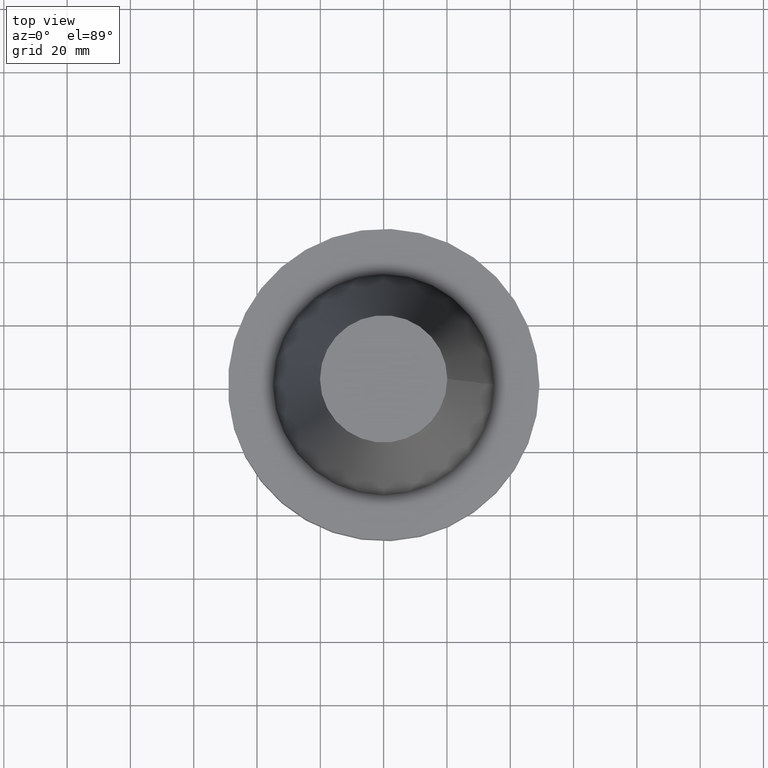
[diagram: clean part render]
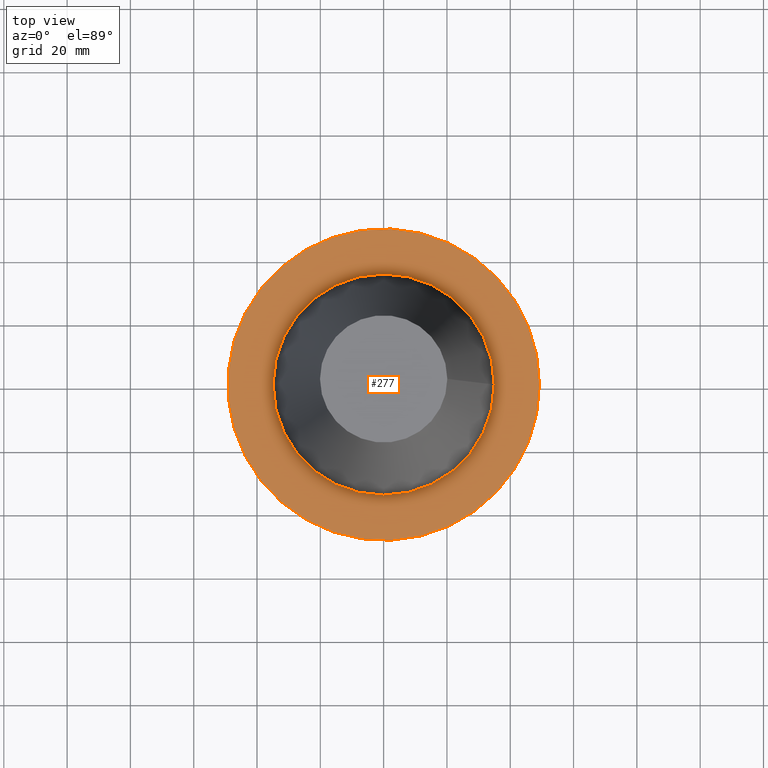
[diagram: same view with one face highlighted and labeled with its STEP entity id]
A machine part, top view. The second image highlights one B-rep face of the part: STEP entity #277.
In plain terms, the highlighted planar face has unit normal (0, 0, -1).
Its self-contained STEP definition (entity closure, byte-faithful):
#3 = AXIS2_PLACEMENT_3D ( 'NONE', #23, #105, #293 ) ;
#23 = CARTESIAN_POINT ( 'NONE',  ( 0.000000000000000000, 49.21499999999999631, -1.499999999999992895 ) ) ;
#42 = FACE_OUTER_BOUND ( 'NONE', #95, .T. ) ;
#51 = ORIENTED_EDGE ( 'NONE', *, *, #288, .F. ) ;
#75 = CARTESIAN_POINT ( 'NONE',  ( 0.000000000000000000, 0.000000000000000000, -1.499999999999987566 ) ) ;
#76 = DIRECTION ( 'NONE',  ( 1.000000000000000000, 0.000000000000000000, 0.000000000000000000 ) ) ;
#83 = EDGE_CURVE ( 'NONE', #335, #335, #109, .T. ) ;
#95 = EDGE_LOOP ( 'NONE', ( #346 ) ) ;
#105 = DIRECTION ( 'NONE',  ( 0.000000000000000000, 0.000000000000000000, -1.000000000000000000 ) ) ;
#109 = CIRCLE ( 'NONE', #307, 49.21499999999999631 ) ;
#143 = VERTEX_POINT ( 'NONE', #245 ) ;
#152 = EDGE_LOOP ( 'NONE', ( #51 ) ) ;
#166 = PLANE ( 'NONE',  #3 ) ;
#236 = DIRECTION ( 'NONE',  ( 1.000000000000000000, 0.000000000000000000, 0.000000000000000000 ) ) ;
#245 = CARTESIAN_POINT ( 'NONE',  ( 34.92499999999999005, 0.000000000000000000, -1.499999999999987566 ) ) ;
#249 = CARTESIAN_POINT ( 'NONE',  ( 49.21499999999999631, 0.000000000000000000, -1.499999999999987566 ) ) ;
#270 = FACE_BOUND ( 'NONE', #152, .T. ) ;
#271 = AXIS2_PLACEMENT_3D ( 'NONE', #75, #331, #236 ) ;
#273 = DIRECTION ( 'NONE',  ( -0.000000000000000000, -0.000000000000000000, 1.000000000000000000 ) ) ;
#277 = ADVANCED_FACE ( 'NONE', ( #270, #42 ), #166, .F. ) ;
#288 = EDGE_CURVE ( 'NONE', #143, #143, #320, .T. ) ;
#293 = DIRECTION ( 'NONE',  ( -1.000000000000000000, 0.000000000000000000, -0.000000000000000000 ) ) ;
#299 = CARTESIAN_POINT ( 'NONE',  ( 0.000000000000000000, 0.000000000000000000, -1.499999999999987566 ) ) ;
#307 = AXIS2_PLACEMENT_3D ( 'NONE', #299, #273, #76 ) ;
#320 = CIRCLE ( 'NONE', #271, 34.92499999999999005 ) ;
#331 = DIRECTION ( 'NONE',  ( -0.000000000000000000, -0.000000000000000000, 1.000000000000000000 ) ) ;
#335 = VERTEX_POINT ( 'NONE', #249 ) ;
#346 = ORIENTED_EDGE ( 'NONE', *, *, #83, .T. ) ;